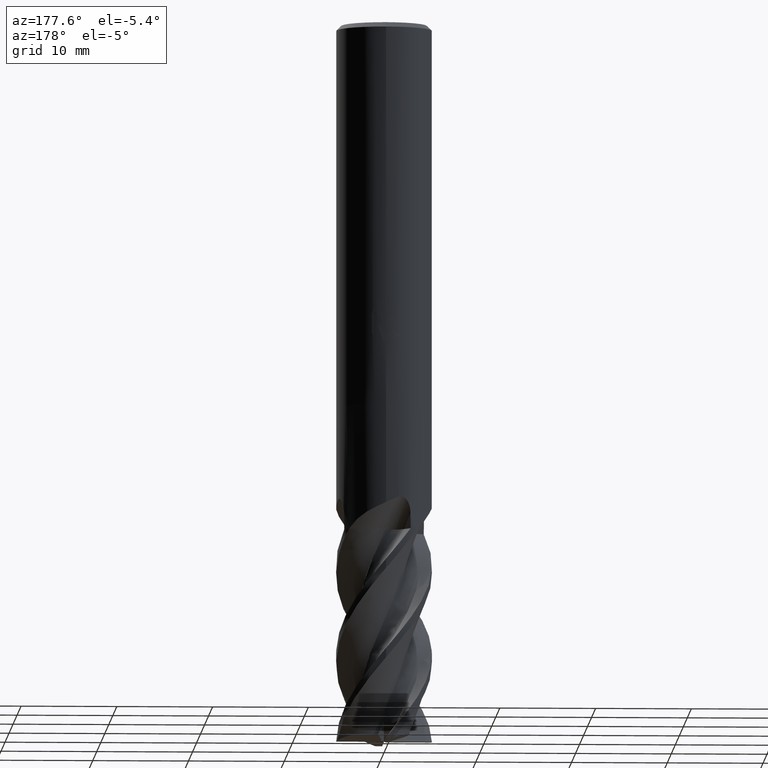
[diagram: clean part render]
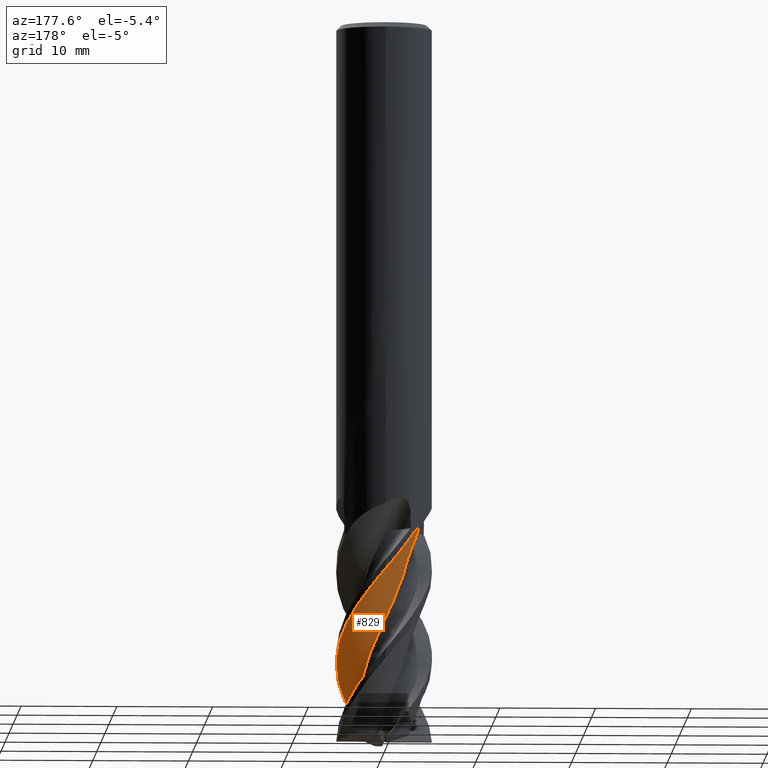
[diagram: same view with one face highlighted and labeled with its STEP entity id]
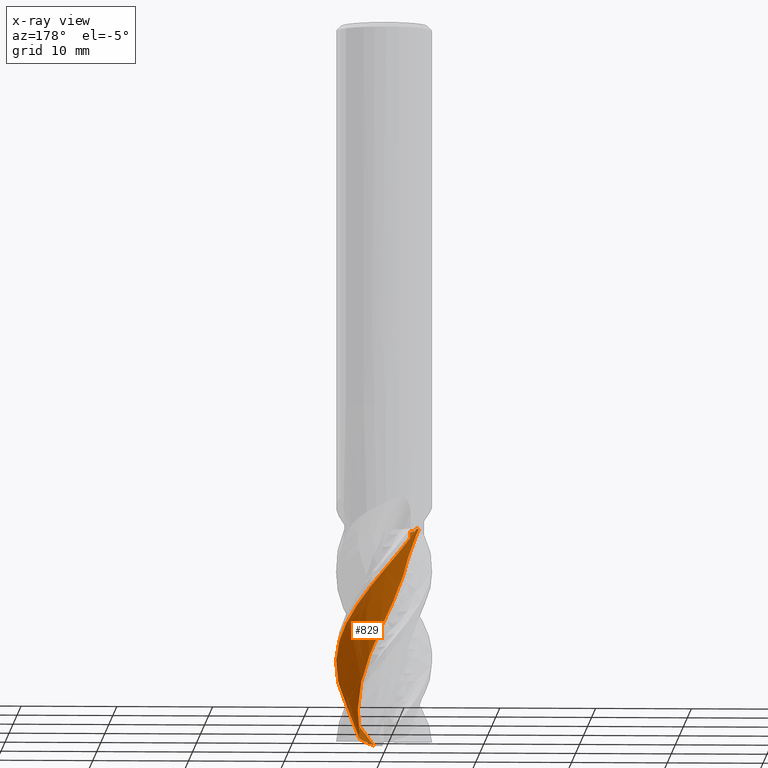
[diagram: x-ray of the same camera — body ghosted, the highlighted face saturated]
A machine part, auxiliary view. The second image highlights one B-rep face of the part: STEP entity #829.
The next image is the same camera in x-ray: the body ghosted, the highlighted face saturated — about 0% of this face is hidden behind the body in this view.
In plain terms, the highlighted face is a freeform B-spline surface patch.
Its self-contained STEP definition (entity closure, byte-faithful):
#673=VERTEX_POINT('',#1673);
#765=VERTEX_POINT('',#1771);
#805=EDGE_CURVE('',#765,#1107,#1815,.T.);
#829=ADVANCED_FACE('',(#1840),#1841,.T.);
#851=EDGE_CURVE('',#967,#765,#1867,.T.);
#967=VERTEX_POINT('',#1995);
#1067=EDGE_CURVE('',#1107,#1105,#2103,.T.);
#1085=VERTEX_POINT('',#2122);
#1087=VERTEX_POINT('',#2124);
#1105=VERTEX_POINT('',#2143);
#1107=VERTEX_POINT('',#2145);
#1227=EDGE_CURVE('',#1085,#1087,#2275,.T.);
#1233=EDGE_CURVE('',#673,#1085,#2284,.T.);
#1335=EDGE_CURVE('',#673,#1105,#2394,.T.);
#1469=EDGE_CURVE('',#1087,#967,#2544,.T.);
#1673=CARTESIAN_POINT('',(2.46460790427425,-1.19390406016006,-74.4203661706195));
#1771=CARTESIAN_POINT('',(-3.27735574731752,3.75916761069031,-53.0));
#1815=B_SPLINE_CURVE_WITH_KNOTS('',3,(#4153,#4154,#4155,#4156,#4157,#4158,#4159,#4160),.UNSPECIFIED.,.F.,.F.,(4,2,2,4),(0.0,1.55395800995072,2.99564373161464,4.43728701716926),.UNSPECIFIED.);
#1840=FACE_OUTER_BOUND('',#4213,.T.);
#1841=B_SPLINE_SURFACE_WITH_KNOTS('',3,3,((#4214,#4215,#4216,#4217,#4218,#4219,#4220,#4221,#4222,#4223,#4224,#4225,#4226,#4227,#4228,#4229,#4230,#4231,#4232,#4233,#4234,#4235,#4236,#4237,#4238,#4239,#4240,#4241,#4242,#4243,#4244,#4245,#4246,#4247,#4248,#4249,#4250,#4251,#4252,#4253,#4254,#4255,#4256,#4257,#4258,#4259,#4260,#4261,#4262,#4263,#4264,#4265,#4266),(#4267,#4268,#4269,#4270,#4271,#4272,#4273,#4274,#4275,#4276,#4277,#4278,#4279,#4280,#4281,#4282,#4283,#4284,#4285,#4286,#4287,#4288,#4289,#4290,#4291,#4292,#4293,#4294,#4295,#4296,#4297,#4298,#4299,#4300,#4301,#4302,#4303,#4304,#4305,#4306,#4307,#4308,#4309,#4310,#4311,#4312,#4313,#4314,#4315,#4316,#4317,#4318,#4319),(#4320,#4321,#4322,#4323,#4324,#4325,#4326,#4327,#4328,#4329,#4330,#4331,#4332,#4333,#4334,#4335,#4336,#4337,#4338,#4339,#4340,#4341,#4342,#4343,#4344,#4345,#4346,#4347,#4348,#4349,#4350,#4351,#4352,#4353,#4354,#4355,#4356,#4357,#4358,#4359,#4360,#4361,#4362,#4363,#4364,#4365,#4366,#4367,#4368,#4369,#4370,#4371,#4372),(#4373,#4374,#4375,#4376,#4377,#4378,#4379,#4380,#4381,#4382,#4383,#4384,#4385,#4386,#4387,#4388,#4389,#4390,#4391,#4392,#4393,#4394,#4395,#4396,#4397,#4398,#4399,#4400,#4401,#4402,#4403,#4404,#4405,#4406,#4407,#4408,#4409,#4410,#4411,#4412,#4413,#4414,#4415,#4416,#4417,#4418,#4419,#4420,#4421,#4422,#4423,#4424,#4425),(#4426,#4427,#4428,#4429,#4430,#4431,#4432,#4433,#4434,#4435,#4436,#4437,#4438,#4439,#4440,#4441,#4442,#4443,#4444,#4445,#4446,#4447,#4448,#4449,#4450,#4451,#4452,#4453,#4454,#4455,#4456,#4457,#4458,#4459,#4460,#4461,#4462,#4463,#4464,#4465,#4466,#4467,#4468,#4469,#4470,#4471,#4472,#4473,#4474,#4475,#4476,#4477,#4478),(#4479,#4480,#4481,#4482,#4483,#4484,#4485,#4486,#4487,#4488,#4489,#4490,#4491,#4492,#4493,#4494,#4495,#4496,#4497,#4498,#4499,#4500,#4501,#4502,#4503,#4504,#4505,#4506,#4507,#4508,#4509,#4510,#4511,#4512,#4513,#4514,#4515,#4516,#4517,#4518,#4519,#4520,#4521,#4522,#4523,#4524,#4525,#4526,#4527,#4528,#4529,#4530,#4531)),.UNSPECIFIED.,.F.,.F.,.F.,(4,1,1,4),(4,1,2,1,2,1,2,1,2,1,2,1,2,1,2,1,2,1,2,1,2,1,2,1,2,1,2,1,2,1,2,1,2,1,4),(-1.11221997675852,-0.695137485474076,-0.27805499418963,0.0),(0.0,0.658549239123413,1.31709847824683,1.97564771737024,2.63419695649365,3.95129543474048,5.2683939129873,6.58549239123413,7.90259086948096,9.21968934772778,10.5367878259746,11.8538863042214,13.1709847824683,14.4880832607151,15.8051817389619,17.1222802172087,18.4393786954556,19.7564771737024,21.0735756519492,22.390674130196,23.7077726084429,25.0248710866897,26.3419695649365,27.6590680431833,28.9761665214302,30.293264999677,31.6103634779238,32.9274619561707,34.2445604344175,35.5616589126643,36.8787573909111,38.195855869158,39.5129543474048,40.8300528256516,42.1471513038984),.UNSPECIFIED.);
#1867=B_SPLINE_CURVE_WITH_KNOTS('',3,(#4570,#4571,#4572,#4573,#4574,#4575,#4576,#4577),.UNSPECIFIED.,.F.,.F.,(4,2,2,4),(0.0,1.55395800995072,2.99564373161464,4.43728701716926),.UNSPECIFIED.);
#1995=CARTESIAN_POINT('',(-3.26797763358509,3.78408802703999,-53.0));
#2103=B_SPLINE_CURVE_WITH_KNOTS('',3,(#6225,#6226,#6227,#6228,#6229,#6230,#6231,#6232),.UNSPECIFIED.,.F.,.F.,(4,2,2,4),(0.0,1.55395800995072,2.99564373161464,4.43728701716926),.UNSPECIFIED.);
#2122=CARTESIAN_POINT('',(0.841450383156636,-4.92868733825061,-74.9477620193192));
#2124=CARTESIAN_POINT('',(-1.03435088070379E-015,4.99991926440228,-57.2381685027512));
#2143=CARTESIAN_POINT('',(-2.73875652295535,-0.00705434222565993,-53.0));
#2145=CARTESIAN_POINT('',(-3.51485827910795,2.68852362562381,-53.0));
#2275=B_SPLINE_CURVE_WITH_KNOTS('',3,(#7456,#7457,#7458,#7459,#7460,#7461,#7462,#7463,#7464,#7465,#7466,#7467,#7468,#7469,#7470,#7471,#7472,#7473,#7474,#7475,#7476,#7477,#7478,#7479,#7480,#7481,#7482,#7483,#7484,#7485,#7486,#7487,#7488,#7489,#7490,#7491,#7492,#7493,#7494,#7495,#7496,#7497,#7498,#7499),.UNSPECIFIED.,.F.,.F.,(4,2,2,2,2,2,2,2,2,2,2,2,2,2,2,2,2,2,2,2,2,4),(0.0,1.11782281071642,3.42921286870701,4.91577254671551,6.62811970800622,8.36961584312674,10.717363157627,12.11393722065,14.3828493608528,14.6555164613891,15.7311475631934,16.8491288260582,17.4025653199832,18.7910887617196,20.4428079224242,21.4661502094231,22.9926826572078,23.5679947793346,24.5802233826726,26.0669529227689,26.8144601346472,27.5603975785353),.UNSPECIFIED.);
#2284=B_SPLINE_CURVE_WITH_KNOTS('',3,(#7513,#7514,#7515,#7516,#7517,#7518,#7519,#7520,#7521,#7522),.UNSPECIFIED.,.F.,.F.,(4,2,2,2,4),(0.0,1.35356771246786,2.67881120581007,3.58947460283709,4.57505855524743),.UNSPECIFIED.);
#2394=B_SPLINE_CURVE_WITH_KNOTS('',3,(#7970,#7971,#7972,#7973,#7974,#7975,#7976,#7977,#7978,#7979,#7980,#7981,#7982,#7983,#7984,#7985,#7986,#7987,#7988,#7989,#7990,#7991,#7992,#7993,#7994,#7995,#7996,#7997,#7998,#7999,#8000,#8001,#8002,#8003,#8004,#8005,#8006,#8007,#8008,#8009,#8010,#8011,#8012,#8013,#8014,#8015,#8016,#8017,#8018,#8019,#8020,#8021,#8022),.UNSPECIFIED.,.F.,.F.,(4,1,2,1,2,1,2,1,2,1,2,1,2,1,2,1,2,1,2,1,2,1,2,1,2,1,2,1,2,1,2,1,2,1,4),(0.0,0.658549239123413,1.31709847824683,1.97564771737024,2.63419695649365,3.95129543474048,5.2683939129873,6.58549239123413,7.90259086948096,9.21968934772778,10.5367878259746,11.8538863042214,13.1709847824683,14.4880832607151,15.8051817389619,17.1222802172087,18.4393786954556,19.7564771737024,21.0735756519492,22.390674130196,23.7077726084429,25.0248710866897,26.3419695649365,27.6590680431833,28.9761665214302,30.293264999677,31.6103634779238,32.9274619561707,34.2445604344175,35.5616589126643,36.8787573909111,38.195855869158,39.5129543474048,40.8300528256516,42.1471513038984),.UNSPECIFIED.);
#2544=B_SPLINE_CURVE_WITH_KNOTS('',3,(#10286,#10287,#10288,#10289,#10290,#10291,#10292,#10293,#10294,#10295,#10296,#10297,#10298,#10299,#10300,#10301,#10302,#10303,#10304,#10305,#10306,#10307,#10308,#10309,#10310,#10311,#10312,#10313,#10314,#10315,#10316,#10317,#10318,#10319,#10320,#10321,#10322,#10323,#10324,#10325,#10326,#10327,#10328,#10329),.UNSPECIFIED.,.F.,.F.,(4,2,2,2,2,2,2,2,2,2,2,2,2,2,2,2,2,2,2,2,2,4),(0.0,1.11782281071642,3.42921286870701,4.91577254671551,6.62811970800622,8.36961584312674,10.717363157627,12.11393722065,14.3828493608528,14.6555164613891,15.7311475631934,16.8491288260582,17.4025653199832,18.7910887617196,20.4428079224242,21.4661502094231,22.9926826572078,23.5679947793346,24.5802233826726,26.0669529227689,26.8144601346472,27.5603975785353),.UNSPECIFIED.);
#4153=CARTESIAN_POINT('',(-3.09328565480652,4.17795578713016,-53.0));
#4154=CARTESIAN_POINT('',(-3.32863304226522,3.71652203581955,-53.0));
#4155=CARTESIAN_POINT('',(-3.47160343900252,3.21353291675498,-53.0));
#4156=CARTESIAN_POINT('',(-3.55361305107733,2.21835913436387,-53.0));
#4157=CARTESIAN_POINT('',(-3.50596477395292,1.73621024299966,-53.0));
#4158=CARTESIAN_POINT('',(-3.24106465959036,0.812328196172827,-53.0));
#4159=CARTESIAN_POINT('',(-3.02599776105416,0.378196692979864,-53.0));
#4160=CARTESIAN_POINT('',(-2.73875652295535,-0.00705434222566426,-53.0));
#4213=EDGE_LOOP('',(#10921,#10922,#10923,#10924,#10925,#10926,#10927));
#4214=CARTESIAN_POINT('',(-5.19564065181808,-0.212880755921786,-85.0));
#4215=CARTESIAN_POINT('',(-5.19528896899668,-0.210840523108685,-84.7812533060796));
#4216=CARTESIAN_POINT('',(-5.19262000152066,-0.329104450416476,-84.3437849701377));
#4217=CARTESIAN_POINT('',(-5.15720838666471,-0.698156057693048,-83.9063194146389));
#4218=CARTESIAN_POINT('',(-5.06724983328956,-1.18412517042939,-83.4687846668436));
#4219=CARTESIAN_POINT('',(-4.95066959815788,-1.6258080788228,-83.0312400607042));
#4220=CARTESIAN_POINT('',(-4.80678529559667,-1.98790248497123,-82.5937244100696));
#4221=CARTESIAN_POINT('',(-4.58167644573462,-2.48334600477754,-81.9374991212977));
#4222=CARTESIAN_POINT('',(-4.21308866800315,-3.1124930419534,-81.0625306906419));
#4223=CARTESIAN_POINT('',(-3.69741334506329,-3.67535099073422,-80.18754608057));
#4224=CARTESIAN_POINT('',(-3.10075043423194,-4.19091508479844,-79.3125255949288));
#4225=CARTESIAN_POINT('',(-2.46686918229143,-4.62223000617779,-78.4375016487429));
#4226=CARTESIAN_POINT('',(-1.76206257485746,-4.90599867134783,-77.5625054330029));
#4227=CARTESIAN_POINT('',(-1.01465696081345,-5.11316721069335,-76.6875121025522));
#4228=CARTESIAN_POINT('',(-0.263476613937211,-5.23260956170409,-75.812510356592));
#4229=CARTESIAN_POINT('',(0.496704337358215,-5.1891784132298,-74.9375165796868));
#4230=CARTESIAN_POINT('',(1.26264874114258,-5.05769517508841,-74.0625139747907));
#4231=CARTESIAN_POINT('',(1.99313798260938,-4.84524745446909,-73.1875056220906));
#4232=CARTESIAN_POINT('',(2.66174257652028,-4.48213038475485,-72.3125116116579));
#4233=CARTESIAN_POINT('',(3.2986345850387,-4.03653488904372,-71.4375116028697));
#4234=CARTESIAN_POINT('',(3.86906648040869,-3.53266031969681,-70.5625048909418));
#4235=CARTESIAN_POINT('',(4.31902540947292,-2.91895656461911,-69.6875108191356));
#4236=CARTESIAN_POINT('',(4.70497442715972,-2.24449571494529,-68.812510214551));
#4237=CARTESIAN_POINT('',(5.0060094551045,-1.54567298538179,-67.9375031850283));
#4238=CARTESIAN_POINT('',(5.1513446554838,-0.798729842659481,-67.0625091524251));
#4239=CARTESIAN_POINT('',(5.21286759082186,-0.0239986321044236,-66.1875086289168));
#4240=CARTESIAN_POINT('',(5.18717408886289,0.736547975606162,-65.312501633337));
#4241=CARTESIAN_POINT('',(5.00010953513177,1.47418304785314,-64.4375075966329));
#4242=CARTESIAN_POINT('',(4.72538971847589,2.20119352641477,-63.5625070769928));
#4243=CARTESIAN_POINT('',(4.37782937448138,2.87817350137968,-62.6875000763131));
#4244=CARTESIAN_POINT('',(3.89408672852286,3.46560203942366,-61.8125060411278));
#4245=CARTESIAN_POINT('',(3.33559676218573,4.00604014437711,-60.9375055379588));
#4246=CARTESIAN_POINT('',(2.7325541567819,4.47016989292942,-60.0624985516363));
#4247=CARTESIAN_POINT('',(2.04451796694462,4.79523324811253,-59.1875045081713));
#4248=CARTESIAN_POINT('',(1.30891158377859,5.04592099399764,-58.3125039806076));
#4249=CARTESIAN_POINT('',(0.565550034571109,5.20858975362414,-57.4374969715561));
#4250=CARTESIAN_POINT('',(-0.195388415102191,5.20923516036395,-56.5625029559718));
#4251=CARTESIAN_POINT('',(-0.967644524787029,5.12232511664625,-55.6875025036197));
#4252=CARTESIAN_POINT('',(-1.70942758411799,4.95248993847634,-54.8124955685524));
#4253=CARTESIAN_POINT('',(-2.39806006686803,4.62856621927953,-53.9375013817362));
#4254=CARTESIAN_POINT('',(-3.05958111800413,4.22060810794623,-53.0625005308035));
#4255=CARTESIAN_POINT('',(-3.65808307645688,3.7506867067041,-52.1874933468299));
#4256=CARTESIAN_POINT('',(-4.14283087270737,3.16406527832638,-51.3124999242031));
#4257=CARTESIAN_POINT('',(-4.56728186515552,2.51287897874017,-50.4375006056701));
#4258=CARTESIAN_POINT('',(-4.90829711394863,1.83243908172948,-49.5624941632338));
#4259=CARTESIAN_POINT('',(-5.09642070179904,1.09564201272663,-48.6874980112799));
#4260=CARTESIAN_POINT('',(-5.20261347032714,0.32690041909609,-47.8124936206014));
#4261=CARTESIAN_POINT('',(-5.22134047541992,-0.433560673283972,-46.9374847087757));
#4262=CARTESIAN_POINT('',(-5.07682791801552,-1.18407766852295,-46.0624952101863));
#4263=CARTESIAN_POINT('',(-4.84240878439288,-1.93087930835864,-45.1875030282946));
#4264=CARTESIAN_POINT('',(-4.53291513029247,-2.62588910527389,-44.3124999411029));
#4265=CARTESIAN_POINT('',(-4.09258784894508,-3.22762257449782,-43.4375113878634));
#4266=CARTESIAN_POINT('',(-3.83791461669748,-3.50619996638202,-43.0000173472818));
#4267=CARTESIAN_POINT('',(-4.93170831188153,-0.698890583402566,-85.0));
#4268=CARTESIAN_POINT('',(-4.92996193077908,-0.696092947284563,-84.7812477506679));
#4269=CARTESIAN_POINT('',(-4.91397754171864,-0.807341292110573,-84.3438943676159));
#4270=CARTESIAN_POINT('',(-4.8450530967495,-1.1554182046048,-83.9065777578631));
#4271=CARTESIAN_POINT('',(-4.71394351749065,-1.61039232325535,-83.4689234610815));
#4272=CARTESIAN_POINT('',(-4.56135076663603,-2.02048812184465,-83.0312138907931));
#4273=CARTESIAN_POINT('',(-4.38983155369086,-2.35175907641763,-82.5936353125236));
#4274=CARTESIAN_POINT('',(-4.12803170015487,-2.80205611915486,-81.9374990878007));
#4275=CARTESIAN_POINT('',(-3.71680807694596,-3.36595882092604,-81.062650344573));
#4276=CARTESIAN_POINT('',(-3.17199793333922,-3.85298517041422,-80.1877290714326));
#4277=CARTESIAN_POINT('',(-2.55459795332904,-4.28751710924707,-79.3126353991727));
#4278=CARTESIAN_POINT('',(-1.90968256455268,-4.63800368947635,-78.4375236213831));
#4279=CARTESIAN_POINT('',(-1.21128746499442,-4.8411101604856,-77.5625426388667));
#4280=CARTESIAN_POINT('',(-0.479576978669588,-4.96738527067748,-76.6875758073932));
#4281=CARTESIAN_POINT('',(0.247346245427561,-5.00955578726724,-75.8125693808356));
#4282=CARTESIAN_POINT('',(0.967304632342906,-4.89574165991615,-74.9376011986691));
#4283=CARTESIAN_POINT('',(1.68447975893709,-4.69765686707511,-74.06259087394));
#4284=CARTESIAN_POINT('',(2.36005932335331,-4.42565813731645,-73.1875530875125));
#4285=CARTESIAN_POINT('',(2.96231584272816,-4.0160551497961,-72.3125834603296));
#4286=CARTESIAN_POINT('',(3.52668285680674,-3.53100188078726,-71.4375853381298));
#4287=CARTESIAN_POINT('',(4.02202295932162,-2.99666159221371,-70.5625553196575));
#4288=CARTESIAN_POINT('',(4.39213218268037,-2.36920667551295,-69.6875855047846));
#4289=CARTESIAN_POINT('',(4.69567584227641,-1.68998484554419,-68.8125845749262));
#4290=CARTESIAN_POINT('',(4.91581677835287,-0.995623855171632,-67.9375530734487));
#4291=CARTESIAN_POINT('',(4.98306399199474,-0.270287300695489,-67.0625833922553));
#4292=CARTESIAN_POINT('',(4.96801014401761,0.473609609113089,-66.187582868747));
#4293=CARTESIAN_POINT('',(4.8710415849211,1.19562275738057,-65.3125514954746));
#4294=CARTESIAN_POINT('',(4.62255568680126,1.8804133420066,-64.4375818251621));
#4295=CARTESIAN_POINT('',(4.29171794267053,2.54687831696222,-63.562581305522));
#4296=CARTESIAN_POINT('',(3.89611908123473,3.15860988623854,-62.6875499380225));
#4297=CARTESIAN_POINT('',(3.37935419140072,3.6720488870408,-61.8125802397515));
#4298=CARTESIAN_POINT('',(2.79592274163156,4.13379401336348,-60.9375798233222));
#4299=CARTESIAN_POINT('',(2.17725155540812,4.51842182278383,-60.0625484693981));
#4300=CARTESIAN_POINT('',(1.49089623483933,4.76247966201422,-59.1875787715815));
#4301=CARTESIAN_POINT('',(0.766285263184281,4.93135345200095,-58.3125782440178));
#4302=CARTESIAN_POINT('',(0.0426874774931613,5.01544802894296,-57.4375468766799));
#4303=CARTESIAN_POINT('',(-0.682190065062341,4.94354004555916,-56.5625772905961));
#4304=CARTESIAN_POINT('',(-1.40961547698835,4.78731667625673,-55.6875769683535));
#4305=CARTESIAN_POINT('',(-2.1000159512834,4.55483384136963,-54.8125457052705));
#4306=CARTESIAN_POINT('',(-2.72508676617687,4.18065599903818,-53.937575334314));
#4307=CARTESIAN_POINT('',(-3.31649464572481,3.72911579492359,-53.062573702724));
#4308=CARTESIAN_POINT('',(-3.84180778539446,3.22444142665647,-52.1875422029763));
#4309=CARTESIAN_POINT('',(-4.24763551039344,2.61946779760515,-51.3125752566083));
#4310=CARTESIAN_POINT('',(-4.59007350468797,1.95875788933604,-50.4375788872251));
#4311=CARTESIAN_POINT('',(-4.85005276929156,1.27809651900164,-49.5625472518105));
#4312=CARTESIAN_POINT('',(-4.95901905427137,0.558346719320693,-48.6875684876759));
#4313=CARTESIAN_POINT('',(-4.987078207299,-0.184088051298559,-47.8125558567262));
#4314=CARTESIAN_POINT('',(-4.93242665538551,-0.910250465408659,-46.9375269300497));
#4315=CARTESIAN_POINT('',(-4.72327216801947,-1.61138370564588,-46.0625793946154));
#4316=CARTESIAN_POINT('',(-4.42898485131052,-2.3005710515269,-45.187602825869));
#4317=CARTESIAN_POINT('',(-4.06792450166377,-2.93311242747201,-44.3125580227236));
#4318=CARTESIAN_POINT('',(-3.59107400287422,-3.46419176548664,-43.4375717062665));
#4319=CARTESIAN_POINT('',(-3.32193239673216,-3.70526823833512,-43.0000825664777));
#4320=CARTESIAN_POINT('',(-4.19837080486259,-1.55898611572147,-85.0));
#4321=CARTESIAN_POINT('',(-4.19415622623915,-1.55408402993863,-84.7812378874733));
#4322=CARTESIAN_POINT('',(-4.15451624639231,-1.64567166614129,-84.3440885944495));
#4323=CARTESIAN_POINT('',(-4.02745796166754,-1.93763230747931,-83.9070364251788));
#4324=CARTESIAN_POINT('',(-3.82718159671149,-2.31322348051045,-83.4691698798203));
#4325=CARTESIAN_POINT('',(-3.61594680745214,-2.64492635976016,-83.0311674291838));
#4326=CARTESIAN_POINT('',(-3.40221311815042,-2.90287561588042,-82.5934771243328));
#4327=CARTESIAN_POINT('',(-3.08615117218122,-3.24738128321706,-81.9374990334592));
#4328=CARTESIAN_POINT('',(-2.61728169422502,-3.66279270438529,-81.0628627823106));
#4329=CARTESIAN_POINT('',(-2.04629960988529,-3.98587079248704,-80.1880539487006));
#4330=CARTESIAN_POINT('',(-1.42171887222268,-4.24960902677362,-79.3128303563869));
#4331=CARTESIAN_POINT('',(-0.788937096047607,-4.43381440617475,-78.4375626387699));
#4332=CARTESIAN_POINT('',(-0.137487195349984,-4.47835258411452,-77.5626086730264));
#4333=CARTESIAN_POINT('',(0.528618068881627,-4.44952467626,-76.6876889321772));
#4334=CARTESIAN_POINT('',(1.17434886692049,-4.3474557071164,-75.8126741659494));
#4335=CARTESIAN_POINT('',(1.78410703370605,-4.10993054714935,-74.9377514265612));
#4336=CARTESIAN_POINT('',(2.37559295228603,-3.7993114037967,-74.0627274086796));
#4337=CARTESIAN_POINT('',(2.91618867126283,-3.43147338355889,-73.1876373446808));
#4338=CARTESIAN_POINT('',(3.3661181664828,-2.95699346836976,-72.3127110433805));
#4339=CARTESIAN_POINT('',(3.76878105133049,-2.42372901987417,-71.4377162278038));
#4340=CARTESIAN_POINT('',(4.10108905352134,-1.86024273624386,-70.5626448647527));
#4341=CARTESIAN_POINT('',(4.30572434775907,-1.23907481640269,-69.6877180988281));
#4342=CARTESIAN_POINT('',(4.44248758862906,-0.585196723479407,-68.8127166002742));
#4343=CARTESIAN_POINT('',(4.50277170125163,0.0660194624852647,-67.9376416223929));
#4344=CARTESIAN_POINT('',(4.42302617924326,0.715117942708675,-67.062715242783));
#4345=CARTESIAN_POINT('',(4.26790520546026,1.36496569110043,-66.1877146320999));
#4346=CARTESIAN_POINT('',(4.04472731981178,1.97977850501188,-65.3126400377118));
#4347=CARTESIAN_POINT('',(3.69578877780953,2.53292324374022,-64.4377136236329));
#4348=CARTESIAN_POINT('',(3.27836039842189,3.05458819273075,-63.5627130807836));
#4349=CARTESIAN_POINT('',(2.81431500809459,3.51553463745712,-62.6876384325408));
#4350=CARTESIAN_POINT('',(2.26282614423914,3.86706386722606,-61.8127120471205));
#4351=CARTESIAN_POINT('',(1.66281769590198,4.16091361739696,-60.9377116375127));
#4352=CARTESIAN_POINT('',(1.0465325904606,4.37996855050189,-60.0626371236847));
#4353=CARTESIAN_POINT('',(0.397808973606156,4.46277024643581,-59.187710635416));
#4354=CARTESIAN_POINT('',(-0.270204204770001,4.472712169933,-58.3127100777957));
#4355=CARTESIAN_POINT('',(-0.921042880742039,4.4080622765628,-57.4376354817914));
#4356=CARTESIAN_POINT('',(-1.5431230405757,4.20634290937562,-56.5627092757592));
#4357=CARTESIAN_POINT('',(-2.15158699860288,3.93049687433936,-55.687709164638));
#4358=CARTESIAN_POINT('',(-2.71274582366355,3.59449089207296,-54.8126346772584));
#4359=CARTESIAN_POINT('',(-3.189466698495,3.14672290538804,-53.9377067247619));
#4360=CARTESIAN_POINT('',(-3.62224793658091,2.63770476444138,-53.0627035201748));
#4361=CARTESIAN_POINT('',(-3.98652007598879,2.09450710912481,-52.1876289798486));
#4362=CARTESIAN_POINT('',(-4.22678611290198,1.48622762321296,-51.3127090234502));
#4363=CARTESIAN_POINT('',(-4.40121324394275,0.841172730545662,-50.4377178497899));
#4364=CARTESIAN_POINT('',(-4.49907066390782,0.194352334653902,-49.562641493366));
#4365=CARTESIAN_POINT('',(-4.45697730276733,-0.4578231853343,-48.6876936590112));
#4366=CARTESIAN_POINT('',(-4.33994099893124,-1.11460265069515,-47.8126663059812));
#4367=CARTESIAN_POINT('',(-4.15308271910322,-1.74114208833428,-46.9376018984451));
#4368=CARTESIAN_POINT('',(-3.83557198581935,-2.31618653537524,-46.0627288877144));
#4369=CARTESIAN_POINT('',(-3.44595547785437,-2.86484809262616,-45.1877799782033));
#4370=CARTESIAN_POINT('',(-3.00821800109737,-3.35067013582687,-44.3126611005704));
#4371=CARTESIAN_POINT('',(-2.48823238358513,-3.72502756692319,-43.4376789100854));
#4372=CARTESIAN_POINT('',(-2.20602728606007,-3.88500135849654,-43.0001983579741));
#4373=CARTESIAN_POINT('',(-2.83975856646587,-2.21119471368608,-85.0));
#4374=CARTESIAN_POINT('',(-2.83367235595137,-2.20239383605,-84.7812303125607));
#4375=CARTESIAN_POINT('',(-2.77581961728731,-2.25723492075801,-84.3442377596526));
#4376=CARTESIAN_POINT('',(-2.60821739229669,-2.44938282907618,-83.9073886803436));
#4377=CARTESIAN_POINT('',(-2.3665192408925,-2.69083898400499,-83.4693591279463));
#4378=CARTESIAN_POINT('',(-2.12615700570169,-2.89530010788351,-83.0311317468379));
#4379=CARTESIAN_POINT('',(-1.90058047761696,-3.04106490349833,-82.5933556369473));
#4380=CARTESIAN_POINT('',(-1.57553316898753,-3.22729758353377,-81.9374989906918));
#4381=CARTESIAN_POINT('',(-1.11662402076563,-3.4305582287287,-81.0630259301212));
#4382=CARTESIAN_POINT('',(-0.602318994315642,-3.53964913399671,-80.1883034612478));
#4383=CARTESIAN_POINT('',(-0.0612634457423805,-3.59131658168935,-79.3129800746583));
#4384=CARTESIAN_POINT('',(0.466887729459212,-3.57938715460187,-78.4375926021829));
#4385=CARTESIAN_POINT('',(0.97544026065048,-3.45600061871218,-77.5626593986586));
#4386=CARTESIAN_POINT('',(1.47777452757129,-3.27355387460323,-76.6877757999053));
#4387=CARTESIAN_POINT('',(1.94660359247323,-3.03952992398272,-75.8127546465928));
#4388=CARTESIAN_POINT('',(2.35519195811514,-2.71074583497654,-74.9378668004637));
#4389=CARTESIAN_POINT('',(2.73266621307533,-2.33086025814517,-74.0628322673379));
#4390=CARTESIAN_POINT('',(3.05694066346338,-1.91912828004419,-73.1877020597717));
#4391=CARTESIAN_POINT('',(3.28613688326089,-1.44786668690406,-72.3128090143071));
#4392=CARTESIAN_POINT('',(3.46564048538121,-0.943201860227789,-71.4378167629009));
#4393=CARTESIAN_POINT('',(3.58347121983983,-0.432272415487839,-70.5627136307095));
#4394=CARTESIAN_POINT('',(3.58979684331091,0.0918278794853442,-69.6878199268277));
#4395=CARTESIAN_POINT('',(3.53695404325427,0.624703032798406,-68.8128179989161));
#4396=CARTESIAN_POINT('',(3.42568945214378,1.13695818008318,-67.9377096374213));
#4397=CARTESIAN_POINT('',(3.20795606710124,1.61370654883006,-67.062816480178));
#4398=CARTESIAN_POINT('',(2.93291241626248,2.07323496187739,-66.1878158491064));
#4399=CARTESIAN_POINT('',(2.61380947990293,2.48918491373833,-65.3127080283038));
#4400=CARTESIAN_POINT('',(2.21354996523208,2.82758471241782,-64.4378148400693));
#4401=CARTESIAN_POINT('',(1.76880496327543,3.12595980540069,-63.5628142879316));
#4402=CARTESIAN_POINT('',(1.30279363794486,3.36612385526957,-62.687706413437));
#4403=CARTESIAN_POINT('',(0.796455860436002,3.50153015662927,-61.8128132354637));
#4404=CARTESIAN_POINT('',(0.266953000640554,3.58176539106271,-60.9378129094673));
#4405=CARTESIAN_POINT('',(-0.25696611426844,3.60028241775781,-60.0627051984328));
#4406=CARTESIAN_POINT('',(-0.772692922626049,3.50685102932355,-59.1878118899336));
#4407=CARTESIAN_POINT('',(-1.28584613909602,3.3536402570839,-58.312811341983));
#4408=CARTESIAN_POINT('',(-1.76762896191983,3.14698753140247,-57.4377035256599));
#4409=CARTESIAN_POINT('',(-2.19426714042029,2.84257349175453,-56.562810632501));
#4410=CARTESIAN_POINT('',(-2.59309056479031,2.48518563896022,-55.687810698202));
#4411=CARTESIAN_POINT('',(-2.94077612435668,2.09281694722445,-54.8127030320569));
#4412=CARTESIAN_POINT('',(-3.19690397319179,1.63549741851346,-53.9378075754094));
#4413=CARTESIAN_POINT('',(-3.40527052411756,1.14212031905454,-53.0628032761429));
#4414=CARTESIAN_POINT('',(-3.55242601980624,0.638973183040264,-52.1876956066095));
#4415=CARTESIAN_POINT('',(-3.58909245699963,0.11611538999726,-51.3128117342493));
#4416=CARTESIAN_POINT('',(-3.56717898933101,-0.419081929255058,-50.4378245940824));
#4417=CARTESIAN_POINT('',(-3.48569994469862,-0.937058554304342,-49.5627138630666));
#4418=CARTESIAN_POINT('',(-3.29598031909455,-1.42524746907071,-48.6877897834226));
#4419=CARTESIAN_POINT('',(-3.04835691698905,-1.89922264784155,-47.8127511372346));
#4420=CARTESIAN_POINT('',(-2.7541689674522,-2.3328953816408,-46.9376594737343));
#4421=CARTESIAN_POINT('',(-2.37270066650434,-2.69569850172845,-46.0628436914249));
#4422=CARTESIAN_POINT('',(-1.94280621642184,-3.02155896239192,-45.1879160369015));
#4423=CARTESIAN_POINT('',(-1.49087332507607,-3.28710775216333,-44.312740271794));
#4424=CARTESIAN_POINT('',(-1.0029829672161,-3.44712159787177,-43.4377612200814));
#4425=CARTESIAN_POINT('',(-0.748673000566573,-3.50117620530091,-43.000287285389));
#4426=CARTESIAN_POINT('',(-1.91358979082691,-2.30394249606409,-85.0));
#4427=CARTESIAN_POINT('',(-1.90723742396359,-2.29248380545955,-84.7812291480568));
#4428=CARTESIAN_POINT('',(-1.84654376352794,-2.32215420989044,-84.3442606922262));
#4429=CARTESIAN_POINT('',(-1.67640806247972,-2.44781120562091,-83.9074428355772));
#4430=CARTESIAN_POINT('',(-1.43889096718581,-2.60266206932836,-83.4693882229394));
#4431=CARTESIAN_POINT('',(-1.20839769772011,-2.72710828002118,-83.0311262606081));
#4432=CARTESIAN_POINT('',(-0.999557294616218,-2.80523944116546,-82.5933369603454));
#4433=CARTESIAN_POINT('',(-0.702606143448759,-2.89767819044787,-81.9374989825999));
#4434=CARTESIAN_POINT('',(-0.294134420957897,-2.97984800953742,-81.0630510147258));
#4435=CARTESIAN_POINT('',(0.142220147132158,-2.97661475970061,-80.1883418177827));
#4436=CARTESIAN_POINT('',(0.59013898057889,-2.92272189493211,-79.313003095507));
#4437=CARTESIAN_POINT('',(1.01625260721527,-2.81892780568382,-78.4375972061011));
#4438=CARTESIAN_POINT('',(1.40648536810509,-2.62811153349908,-77.562667199136));
#4439=CARTESIAN_POINT('',(1.78139052842955,-2.39093541411227,-76.6877891529073));
#4440=CARTESIAN_POINT('',(2.11972584535024,-2.11752517531402,-75.8127670183828));
#4441=CARTESIAN_POINT('',(2.39229476609253,-1.77809333962778,-74.9378845423627));
#4442=CARTESIAN_POINT('',(2.63092185157249,-1.4030331172637,-74.062848383795));
#4443=CARTESIAN_POINT('',(2.82034847937758,-1.01134540885014,-73.1877120114705));
#4444=CARTESIAN_POINT('',(2.92205128089183,-0.588412901871047,-72.3128240757681));
#4445=CARTESIAN_POINT('',(2.97799509314293,-0.147325672018021,-71.437832219578));
#4446=CARTESIAN_POINT('',(2.98234987766755,0.287942590854218,-70.5627242039718));
#4447=CARTESIAN_POINT('',(2.89395612435223,0.713939098268431,-69.687835578777));
#4448=CARTESIAN_POINT('',(2.7564857539925,1.13664415835309,-68.8128335908431));
#4449=CARTESIAN_POINT('',(2.57485859045257,1.5321024114189,-67.9377200900829));
#4450=CARTESIAN_POINT('',(2.31327783608856,1.87973016609878,-67.0628320491369));
#4451=CARTESIAN_POINT('',(2.00865874382427,2.20350635853469,-66.1878314053089));
#4452=CARTESIAN_POINT('',(1.67571304921663,2.48379427420967,-65.3127184839887));
#4453=CARTESIAN_POINT('',(1.29085344106354,2.68669831509715,-64.4378304000459));
#4454=CARTESIAN_POINT('',(0.877245243384167,2.84966843683999,-63.5628298483683));
#4455=CARTESIAN_POINT('',(0.456563055413843,2.96121936169231,-62.6877168640246));
#4456=CARTESIAN_POINT('',(0.0219326216002305,2.98063536625415,-61.8128287925931));
#4457=CARTESIAN_POINT('',(-0.421668557049521,2.95167351259463,-60.9378284784043));
#4458=CARTESIAN_POINT('',(-0.849744919809609,2.87318770964626,-60.0627156515686));
#4459=CARTESIAN_POINT('',(-1.25115204589066,2.70541835727774,-59.1878274824483));
#4460=CARTESIAN_POINT('',(-1.64004372865991,2.49006668108128,-58.312826884513));
#4461=CARTESIAN_POINT('',(-1.9937736928091,2.23654188093838,-57.4377140106215));
#4462=CARTESIAN_POINT('',(-2.28531131945106,1.91363419513061,-56.5628261928045));
#4463=CARTESIAN_POINT('',(-2.54524197142425,1.55302387738233,-55.6878263300673));
#4464=CARTESIAN_POINT('',(-2.75710897438737,1.17285987973953,-54.8127135249311));
#4465=CARTESIAN_POINT('',(-2.88313703382556,0.756424978931277,-53.937823089789));
#4466=CARTESIAN_POINT('',(-2.96448726764255,0.319365208787066,-53.0628186028469));
#4467=CARTESIAN_POINT('',(-2.99400189325612,-0.114827122647271,-52.1877058534611));
#4468=CARTESIAN_POINT('',(-2.93042605793229,-0.545230011665311,-51.312827527183));
#4469=CARTESIAN_POINT('',(-2.81762862429354,-0.975311392921154,-50.4378410025863));
#4470=CARTESIAN_POINT('',(-2.65913548095831,-1.38072663019333,-49.5627249903943));
#4471=CARTESIAN_POINT('',(-2.41821149524182,-1.74262256433659,-48.6878045611878));
#4472=CARTESIAN_POINT('',(-2.13323846903961,-2.08296454316892,-47.8127641794351));
#4473=CARTESIAN_POINT('',(-1.81732348763222,-2.3820564961252,-46.9376683077454));
#4474=CARTESIAN_POINT('',(-1.44339056884571,-2.60815783628317,-46.0628613760681));
#4475=CARTESIAN_POINT('',(-1.03700393824495,-2.79616900454741,-45.1879369196298));
#4476=CARTESIAN_POINT('',(-0.623191859674871,-2.93082622126779,-44.3127524761162));
#4477=CARTESIAN_POINT('',(-0.199053341268185,-2.97313495565937,-43.4377738439173));
#4478=CARTESIAN_POINT('',(0.0167650031788357,-2.97155802742066,-43.0003009570035));
#4479=CARTESIAN_POINT('',(-1.54516668842389,-2.28963209410875,-85.0));
#4480=CARTESIAN_POINT('',(-1.53885538904449,-2.27711614484176,-84.7812292667592));
#4481=CARTESIAN_POINT('',(-1.47842498813173,-2.29675630574485,-84.3442583540667));
#4482=CARTESIAN_POINT('',(-1.31093493866085,-2.39618950954364,-83.9074373138978));
#4483=CARTESIAN_POINT('',(-1.07979869520854,-2.51729300989652,-83.4693852564669));
#4484=CARTESIAN_POINT('',(-0.857556969136176,-2.61088868514889,-83.0311268200588));
#4485=CARTESIAN_POINT('',(-0.658984443971673,-2.663402519449,-82.5933388644091));
#4486=CARTESIAN_POINT('',(-0.378189797661917,-2.72058278647042,-81.9374989838115));
#4487=CARTESIAN_POINT('',(0.00386652439016535,-2.7580081583736,-81.0630484563422));
#4488=CARTESIAN_POINT('',(0.403491898813342,-2.71497573896403,-80.188337908122));
#4489=CARTESIAN_POINT('',(0.809094021887897,-2.6247684682505,-79.3130007471608));
#4490=CARTESIAN_POINT('',(1.19014872501744,-2.49052016510919,-78.4375967378449));
#4491=CARTESIAN_POINT('',(1.53027237350597,-2.27972701751446,-77.5626664026407));
#4492=CARTESIAN_POINT('',(1.85218991653991,-2.02805513031576,-76.6877877926039));
#4493=CARTESIAN_POINT('',(2.13717517093477,-1.74633615326569,-75.8127657583193));
#4494=CARTESIAN_POINT('',(2.35579931939123,-1.41017247918134,-74.9378827295317));
#4495=CARTESIAN_POINT('',(2.54021924642646,-1.04460548315103,-74.0628467444434));
#4496=CARTESIAN_POINT('',(2.6778407527134,-0.668162625868259,-73.187710994094));
#4497=CARTESIAN_POINT('',(2.73217189782097,-0.271168857998938,-72.3128225416456));
#4498=CARTESIAN_POINT('',(2.74312192269017,0.138212789014099,-71.4378306420857));
#4499=CARTESIAN_POINT('',(2.70710035541623,0.537586913149116,-70.5627231251657));
#4500=CARTESIAN_POINT('',(2.58691711963676,0.919911491493806,-69.6878339859729));
#4501=CARTESIAN_POINT('',(2.42227687267091,1.29476327642032,-68.8128319980391));
#4502=CARTESIAN_POINT('',(2.21943888833463,1.64054932391917,-67.9377190255422));
#4503=CARTESIAN_POINT('',(1.94772410072545,1.93512151942855,-67.0628304623835));
#4504=CARTESIAN_POINT('',(1.63893299528151,2.20402171758877,-66.1878298185554));
#4505=CARTESIAN_POINT('',(1.3079824728976,2.43033018651714,-65.31271741827));
#4506=CARTESIAN_POINT('',(0.936581148859283,2.58092069188909,-64.4378288135361));
#4507=CARTESIAN_POINT('',(0.542600027181607,2.69247430005632,-63.5628282618585));
#4508=CARTESIAN_POINT('',(0.146740956217836,2.75605007829402,-62.6877157987768));
#4509=CARTESIAN_POINT('',(-0.253408844955223,2.73388690469318,-61.8128272057936));
#4510=CARTESIAN_POINT('',(-0.657332636238802,2.66678787803254,-60.9378268916048));
#4511=CARTESIAN_POINT('',(-1.0424991061575,2.55549300668879,-60.0627145914269));
#4512=CARTESIAN_POINT('',(-1.39498826407193,2.36481764871812,-59.1878258807344));
#4513=CARTESIAN_POINT('',(-1.73172930702795,2.1318891964406,-58.3128253117123));
#4514=CARTESIAN_POINT('',(-2.03265704497206,1.86698528707705,-57.4377129302223));
#4515=CARTESIAN_POINT('',(-2.27018092531175,1.54421744114839,-56.5628246170929));
#4516=CARTESIAN_POINT('',(-2.47544600581518,1.18994558471829,-55.6878247254426));
#4517=CARTESIAN_POINT('',(-2.63469794289289,0.822004028953707,-54.8127124629295));
#4518=CARTESIAN_POINT('',(-2.71192433318979,0.428729992164942,-53.9378215030608));
#4519=CARTESIAN_POINT('',(-2.74652734928208,0.0207167174466705,-53.0628170450319));
#4520=CARTESIAN_POINT('',(-2.73366457611202,-0.379984478908915,-52.1877048074863));
#4521=CARTESIAN_POINT('',(-2.63582336092695,-0.768629248080088,-51.3128259144743));
#4522=CARTESIAN_POINT('',(-2.49312494489055,-1.15249769622584,-50.4378393320511));
#4523=CARTESIAN_POINT('',(-2.31057967067948,-1.50953827158079,-49.5627238537622));
#4524=CARTESIAN_POINT('',(-2.05648064378277,-1.81908525907831,-48.6878030561922));
#4525=CARTESIAN_POINT('',(-1.76416971665897,-2.10495701066665,-47.8127628479189));
#4526=CARTESIAN_POINT('',(-1.44709763308097,-2.35006214373195,-46.9376674171375));
#4527=CARTESIAN_POINT('',(-1.08360367373984,-2.52294632356871,-46.0628595544773));
#4528=CARTESIAN_POINT('',(-0.6939849794459,-2.65816445230631,-45.1879348089067));
#4529=CARTESIAN_POINT('',(-0.30229282939794,-2.74355809532533,-44.3127512181268));
#4530=CARTESIAN_POINT('',(0.0903922227422046,-2.74317943762858,-43.437772565622));
#4531=CARTESIAN_POINT('',(0.288064731595738,-2.72188458600727,-43.0002995630552));
#4570=CARTESIAN_POINT('',(-3.09328565480652,4.17795578713016,-53.0));
#4571=CARTESIAN_POINT('',(-3.32863304226522,3.71652203581955,-53.0));
#4572=CARTESIAN_POINT('',(-3.47160343900252,3.21353291675498,-53.0));
#4573=CARTESIAN_POINT('',(-3.55361305107733,2.21835913436387,-53.0));
#4574=CARTESIAN_POINT('',(-3.50596477395292,1.73621024299966,-53.0));
#4575=CARTESIAN_POINT('',(-3.24106465959036,0.812328196172827,-53.0));
#4576=CARTESIAN_POINT('',(-3.02599776105416,0.378196692979864,-53.0));
#4577=CARTESIAN_POINT('',(-2.73875652295535,-0.00705434222566426,-53.0));
#6225=CARTESIAN_POINT('',(-3.09328565480652,4.17795578713016,-53.0));
#6226=CARTESIAN_POINT('',(-3.32863304226522,3.71652203581955,-53.0));
#6227=CARTESIAN_POINT('',(-3.47160343900252,3.21353291675498,-53.0));
#6228=CARTESIAN_POINT('',(-3.55361305107733,2.21835913436387,-53.0));
#6229=CARTESIAN_POINT('',(-3.50596477395292,1.73621024299966,-53.0));
#6230=CARTESIAN_POINT('',(-3.24106465959036,0.812328196172827,-53.0));
#6231=CARTESIAN_POINT('',(-3.02599776105416,0.378196692979864,-53.0));
#6232=CARTESIAN_POINT('',(-2.73875652295535,-0.00705434222566426,-53.0));
#7456=CARTESIAN_POINT('',(0.798109324159042,-4.93589115628479,-75.0));
#7457=CARTESIAN_POINT('',(1.03477456133789,-4.89762223802298,-74.7147606590144));
#7458=CARTESIAN_POINT('',(1.2657268794437,-4.84304467399135,-74.4393400790188));
#7459=CARTESIAN_POINT('',(1.96573975831618,-4.62387798634668,-73.5703174097963));
#7460=CARTESIAN_POINT('',(2.41221607859273,-4.40726315032791,-72.9721735839197));
#7461=CARTESIAN_POINT('',(3.080958692526,-3.95069712872885,-72.0081705659201));
#7462=CARTESIAN_POINT('',(3.32321373193839,-3.74921817697808,-71.6438510110108));
#7463=CARTESIAN_POINT('',(3.80415091490322,-3.26521753492248,-70.8299124073356));
#7464=CARTESIAN_POINT('',(4.03222398130459,-2.97891745281749,-70.3891645984159));
#7465=CARTESIAN_POINT('',(4.42510273833743,-2.35706839842441,-69.5096260886722));
#7466=CARTESIAN_POINT('',(4.58663784495037,-2.02486117994097,-69.0831848951485));
#7467=CARTESIAN_POINT('',(4.87847247686633,-1.20425467731172,-68.0439602463475));
#7468=CARTESIAN_POINT('',(4.97499376768531,-0.708997684523719,-67.4362285793556));
#7469=CARTESIAN_POINT('',(5.00805481205176,0.0934465068337744,-66.4886691428073));
#7470=CARTESIAN_POINT('',(4.99365490444915,0.393061445060846,-66.138107200354));
#7471=CARTESIAN_POINT('',(4.88367916149979,1.17928375391068,-65.1865524024008));
#7472=CARTESIAN_POINT('',(4.74368158400344,1.65706169690104,-64.588480569777));
#7473=CARTESIAN_POINT('',(4.50794183997987,2.16368925397432,-63.9345109025754));
#7474=CARTESIAN_POINT('',(4.48117159706992,2.21867132738816,-63.8627079991661));
#7475=CARTESIAN_POINT('',(4.34056633676849,2.49394671770831,-63.4981493443709));
#7476=CARTESIAN_POINT('',(4.21295212611582,2.70369061528327,-63.2049006684232));
#7477=CARTESIAN_POINT('',(3.92433484622181,3.10857692830406,-62.6072660652221));
#7478=CARTESIAN_POINT('',(3.76145815936006,3.30387737446397,-62.3014263260031));
#7479=CARTESIAN_POINT('',(3.49619848328563,3.57657179931717,-61.8473041319715));
#7480=CARTESIAN_POINT('',(3.4046470874504,3.66386276574916,-61.697181265746));
#7481=CARTESIAN_POINT('',(3.07073148136237,3.95871560671252,-61.1724368197073));
#7482=CARTESIAN_POINT('',(2.81171096981304,4.14702018521011,-60.7966953614212));
#7483=CARTESIAN_POINT('',(2.20254789640288,4.50504836655187,-59.9484121081233));
#7484=CARTESIAN_POINT('',(1.8486893784569,4.66174030413625,-59.4832276528712));
#7485=CARTESIAN_POINT('',(1.24912517887164,4.84732865043616,-58.7412435928421));
#7486=CARTESIAN_POINT('',(1.01661087998404,4.90143467668676,-58.4636210073169));
#7487=CARTESIAN_POINT('',(0.422248891521035,4.99506517483105,-57.7463141831782));
#7488=CARTESIAN_POINT('',(0.061876539520359,5.0124293836377,-57.3118791332684));
#7489=CARTESIAN_POINT('',(-0.431932771339761,4.9830650380428,-56.7197224339715));
#7490=CARTESIAN_POINT('',(-0.567211131733538,4.96951113292973,-56.5578362398476));
#7491=CARTESIAN_POINT('',(-0.939894490582554,4.91663933689929,-56.1128776363791));
#7492=CARTESIAN_POINT('',(-1.17320198290488,4.86631390328167,-55.8352711903498));
#7493=CARTESIAN_POINT('',(-1.74520615004226,4.69883913709127,-55.1246850579371));
#7494=CARTESIAN_POINT('',(-2.07348621060036,4.56341911334316,-54.6971352338246));
#7495=CARTESIAN_POINT('',(-2.54061144273962,4.30998336811031,-54.0608289597669));
#7496=CARTESIAN_POINT('',(-2.69306922054497,4.21647921018798,-53.8482220598219));
#7497=CARTESIAN_POINT('',(-2.98845145493662,4.01252065785023,-53.425952209026));
#7498=CARTESIAN_POINT('',(-3.13022138800838,3.90305704901824,-53.216582238381));
#7499=CARTESIAN_POINT('',(-3.26797763358505,3.78408802704005,-53.0));
#7513=CARTESIAN_POINT('',(2.46460790427425,-1.19390406016005,-74.4203661706195));
#7514=CARTESIAN_POINT('',(2.55648147290414,-1.63463057564325,-74.3905146386085));
#7515=CARTESIAN_POINT('',(2.56841950733228,-2.08617616134088,-74.3866357362034));
#7516=CARTESIAN_POINT('',(2.41792712454261,-2.96390378774281,-74.4355336755048));
#7517=CARTESIAN_POINT('',(2.26184622076031,-3.37402649899353,-74.486247435233));
#7518=CARTESIAN_POINT('',(1.87717893701986,-3.99919559527718,-74.6112334122167));
#7519=CARTESIAN_POINT('',(1.68941423485373,-4.2305134766181,-74.6722418622093));
#7520=CARTESIAN_POINT('',(1.24697124162631,-4.6579025356757,-74.8160003051691));
#7521=CARTESIAN_POINT('',(0.990224298597868,-4.84746225450826,-74.8994224439066));
#7522=CARTESIAN_POINT('',(0.71522675585695,-5.00345100936305,-74.9887745619588));
#7970=CARTESIAN_POINT('',(-1.54516668842389,-2.28963209410875,-85.0));
#7971=CARTESIAN_POINT('',(-1.53885538904449,-2.27711614484176,-84.7812292667592));
#7972=CARTESIAN_POINT('',(-1.47842498813173,-2.29675630574485,-84.3442583540667));
#7973=CARTESIAN_POINT('',(-1.31093493866085,-2.39618950954364,-83.9074373138978));
#7974=CARTESIAN_POINT('',(-1.07979869520854,-2.51729300989652,-83.4693852564669));
#7975=CARTESIAN_POINT('',(-0.857556969136176,-2.61088868514889,-83.0311268200588));
#7976=CARTESIAN_POINT('',(-0.658984443971673,-2.663402519449,-82.5933388644091));
#7977=CARTESIAN_POINT('',(-0.378189797661917,-2.72058278647042,-81.9374989838115));
#7978=CARTESIAN_POINT('',(0.00386652439016535,-2.7580081583736,-81.0630484563422));
#7979=CARTESIAN_POINT('',(0.403491898813342,-2.71497573896403,-80.188337908122));
#7980=CARTESIAN_POINT('',(0.809094021887897,-2.6247684682505,-79.3130007471608));
#7981=CARTESIAN_POINT('',(1.19014872501744,-2.49052016510919,-78.4375967378449));
#7982=CARTESIAN_POINT('',(1.53027237350597,-2.27972701751446,-77.5626664026407));
#7983=CARTESIAN_POINT('',(1.85218991653991,-2.02805513031576,-76.6877877926039));
#7984=CARTESIAN_POINT('',(2.13717517093477,-1.74633615326569,-75.8127657583193));
#7985=CARTESIAN_POINT('',(2.35579931939123,-1.41017247918134,-74.9378827295317));
#7986=CARTESIAN_POINT('',(2.54021924642646,-1.04460548315103,-74.0628467444434));
#7987=CARTESIAN_POINT('',(2.6778407527134,-0.668162625868259,-73.187710994094));
#7988=CARTESIAN_POINT('',(2.73217189782097,-0.271168857998938,-72.3128225416456));
#7989=CARTESIAN_POINT('',(2.74312192269017,0.138212789014099,-71.4378306420857));
#7990=CARTESIAN_POINT('',(2.70710035541623,0.537586913149116,-70.5627231251657));
#7991=CARTESIAN_POINT('',(2.58691711963676,0.919911491493806,-69.6878339859729));
#7992=CARTESIAN_POINT('',(2.42227687267091,1.29476327642032,-68.8128319980391));
#7993=CARTESIAN_POINT('',(2.21943888833463,1.64054932391917,-67.9377190255422));
#7994=CARTESIAN_POINT('',(1.94772410072545,1.93512151942855,-67.0628304623835));
#7995=CARTESIAN_POINT('',(1.63893299528151,2.20402171758877,-66.1878298185554));
#7996=CARTESIAN_POINT('',(1.3079824728976,2.43033018651714,-65.31271741827));
#7997=CARTESIAN_POINT('',(0.936581148859283,2.58092069188909,-64.4378288135361));
#7998=CARTESIAN_POINT('',(0.542600027181607,2.69247430005632,-63.5628282618585));
#7999=CARTESIAN_POINT('',(0.146740956217836,2.75605007829402,-62.6877157987768));
#8000=CARTESIAN_POINT('',(-0.253408844955223,2.73388690469318,-61.8128272057936));
#8001=CARTESIAN_POINT('',(-0.657332636238802,2.66678787803254,-60.9378268916048));
#8002=CARTESIAN_POINT('',(-1.0424991061575,2.55549300668879,-60.0627145914269));
#8003=CARTESIAN_POINT('',(-1.39498826407193,2.36481764871812,-59.1878258807344));
#8004=CARTESIAN_POINT('',(-1.73172930702795,2.1318891964406,-58.3128253117123));
#8005=CARTESIAN_POINT('',(-2.03265704497206,1.86698528707705,-57.4377129302223));
#8006=CARTESIAN_POINT('',(-2.27018092531175,1.54421744114839,-56.5628246170929));
#8007=CARTESIAN_POINT('',(-2.47544600581518,1.18994558471829,-55.6878247254426));
#8008=CARTESIAN_POINT('',(-2.63469794289289,0.822004028953707,-54.8127124629295));
#8009=CARTESIAN_POINT('',(-2.71192433318979,0.428729992164942,-53.9378215030608));
#8010=CARTESIAN_POINT('',(-2.74652734928208,0.0207167174466705,-53.0628170450319));
#8011=CARTESIAN_POINT('',(-2.73366457611202,-0.379984478908915,-52.1877048074863));
#8012=CARTESIAN_POINT('',(-2.63582336092695,-0.768629248080088,-51.3128259144743));
#8013=CARTESIAN_POINT('',(-2.49312494489055,-1.15249769622584,-50.4378393320511));
#8014=CARTESIAN_POINT('',(-2.31057967067948,-1.50953827158079,-49.5627238537622));
#8015=CARTESIAN_POINT('',(-2.05648064378277,-1.81908525907831,-48.6878030561922));
#8016=CARTESIAN_POINT('',(-1.76416971665897,-2.10495701066665,-47.8127628479189));
#8017=CARTESIAN_POINT('',(-1.44709763308097,-2.35006214373195,-46.9376674171375));
#8018=CARTESIAN_POINT('',(-1.08360367373984,-2.52294632356871,-46.0628595544773));
#8019=CARTESIAN_POINT('',(-0.6939849794459,-2.65816445230631,-45.1879348089067));
#8020=CARTESIAN_POINT('',(-0.30229282939794,-2.74355809532533,-44.3127512181268));
#8021=CARTESIAN_POINT('',(0.0903922227422046,-2.74317943762858,-43.437772565622));
#8022=CARTESIAN_POINT('',(0.288064731595738,-2.72188458600727,-43.0002995630552));
#10286=CARTESIAN_POINT('',(0.798109324159042,-4.93589115628479,-75.0));
#10287=CARTESIAN_POINT('',(1.03477456133789,-4.89762223802298,-74.7147606590144));
#10288=CARTESIAN_POINT('',(1.2657268794437,-4.84304467399135,-74.4393400790188));
#10289=CARTESIAN_POINT('',(1.96573975831618,-4.62387798634668,-73.5703174097963));
#10290=CARTESIAN_POINT('',(2.41221607859273,-4.40726315032791,-72.9721735839197));
#10291=CARTESIAN_POINT('',(3.080958692526,-3.95069712872885,-72.0081705659201));
#10292=CARTESIAN_POINT('',(3.32321373193839,-3.74921817697808,-71.6438510110108));
#10293=CARTESIAN_POINT('',(3.80415091490322,-3.26521753492248,-70.8299124073356));
#10294=CARTESIAN_POINT('',(4.03222398130459,-2.97891745281749,-70.3891645984159));
#10295=CARTESIAN_POINT('',(4.42510273833743,-2.35706839842441,-69.5096260886722));
#10296=CARTESIAN_POINT('',(4.58663784495037,-2.02486117994097,-69.0831848951485));
#10297=CARTESIAN_POINT('',(4.87847247686633,-1.20425467731172,-68.0439602463475));
#10298=CARTESIAN_POINT('',(4.97499376768531,-0.708997684523719,-67.4362285793556));
#10299=CARTESIAN_POINT('',(5.00805481205176,0.0934465068337744,-66.4886691428073));
#10300=CARTESIAN_POINT('',(4.99365490444915,0.393061445060846,-66.138107200354));
#10301=CARTESIAN_POINT('',(4.88367916149979,1.17928375391068,-65.1865524024008));
#10302=CARTESIAN_POINT('',(4.74368158400344,1.65706169690104,-64.588480569777));
#10303=CARTESIAN_POINT('',(4.50794183997987,2.16368925397432,-63.9345109025754));
#10304=CARTESIAN_POINT('',(4.48117159706992,2.21867132738816,-63.8627079991661));
#10305=CARTESIAN_POINT('',(4.34056633676849,2.49394671770831,-63.4981493443709));
#10306=CARTESIAN_POINT('',(4.21295212611582,2.70369061528327,-63.2049006684232));
#10307=CARTESIAN_POINT('',(3.92433484622181,3.10857692830406,-62.6072660652221));
#10308=CARTESIAN_POINT('',(3.76145815936006,3.30387737446397,-62.3014263260031));
#10309=CARTESIAN_POINT('',(3.49619848328563,3.57657179931717,-61.8473041319715));
#10310=CARTESIAN_POINT('',(3.4046470874504,3.66386276574916,-61.697181265746));
#10311=CARTESIAN_POINT('',(3.07073148136237,3.95871560671252,-61.1724368197073));
#10312=CARTESIAN_POINT('',(2.81171096981304,4.14702018521011,-60.7966953614212));
#10313=CARTESIAN_POINT('',(2.20254789640288,4.50504836655187,-59.9484121081233));
#10314=CARTESIAN_POINT('',(1.8486893784569,4.66174030413625,-59.4832276528712));
#10315=CARTESIAN_POINT('',(1.24912517887164,4.84732865043616,-58.7412435928421));
#10316=CARTESIAN_POINT('',(1.01661087998404,4.90143467668676,-58.4636210073169));
#10317=CARTESIAN_POINT('',(0.422248891521035,4.99506517483105,-57.7463141831782));
#10318=CARTESIAN_POINT('',(0.061876539520359,5.0124293836377,-57.3118791332684));
#10319=CARTESIAN_POINT('',(-0.431932771339761,4.9830650380428,-56.7197224339715));
#10320=CARTESIAN_POINT('',(-0.567211131733538,4.96951113292973,-56.5578362398476));
#10321=CARTESIAN_POINT('',(-0.939894490582554,4.91663933689929,-56.1128776363791));
#10322=CARTESIAN_POINT('',(-1.17320198290488,4.86631390328167,-55.8352711903498));
#10323=CARTESIAN_POINT('',(-1.74520615004226,4.69883913709127,-55.1246850579371));
#10324=CARTESIAN_POINT('',(-2.07348621060036,4.56341911334316,-54.6971352338246));
#10325=CARTESIAN_POINT('',(-2.54061144273962,4.30998336811031,-54.0608289597669));
#10326=CARTESIAN_POINT('',(-2.69306922054497,4.21647921018798,-53.8482220598219));
#10327=CARTESIAN_POINT('',(-2.98845145493662,4.01252065785023,-53.425952209026));
#10328=CARTESIAN_POINT('',(-3.13022138800838,3.90305704901824,-53.216582238381));
#10329=CARTESIAN_POINT('',(-3.26797763358505,3.78408802704005,-53.0));
#10921=ORIENTED_EDGE('',*,*,#1233,.F.);
#10922=ORIENTED_EDGE('',*,*,#1335,.T.);
#10923=ORIENTED_EDGE('',*,*,#1067,.F.);
#10924=ORIENTED_EDGE('',*,*,#805,.F.);
#10925=ORIENTED_EDGE('',*,*,#851,.F.);
#10926=ORIENTED_EDGE('',*,*,#1469,.F.);
#10927=ORIENTED_EDGE('',*,*,#1227,.F.);